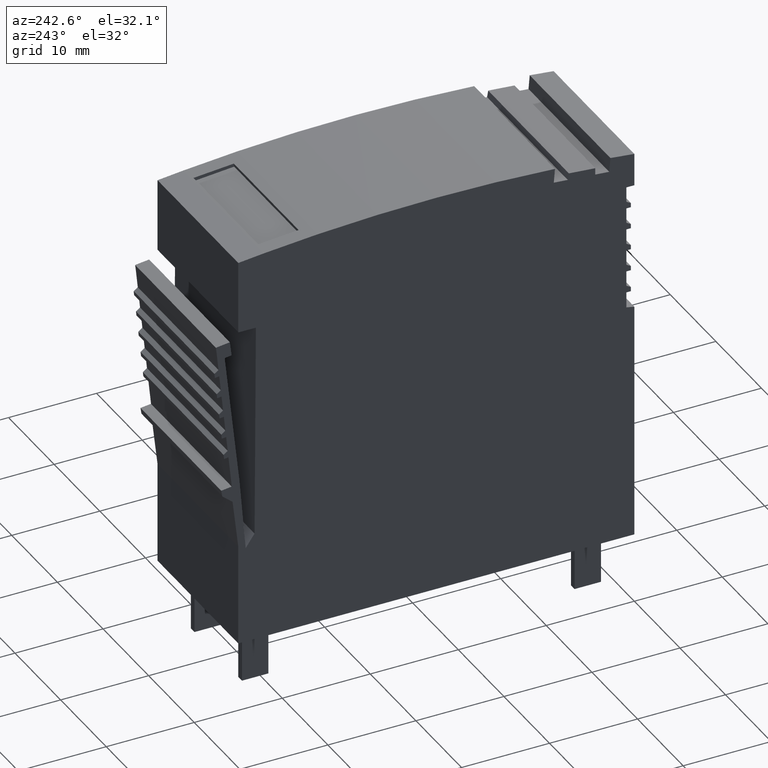
[diagram: clean part render]
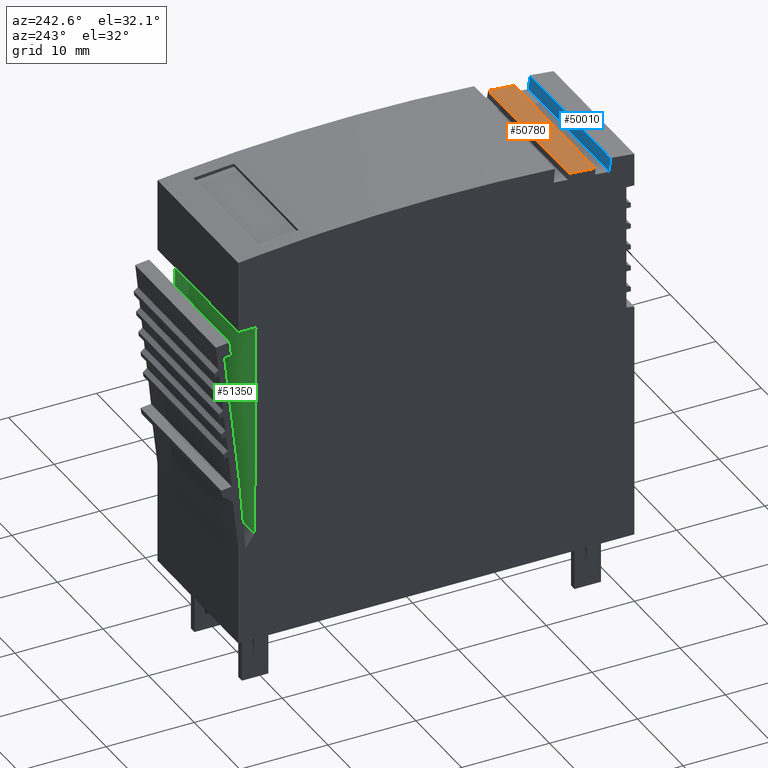
[diagram: same view with three faces highlighted in distinct colors, each labeled with its STEP entity id]
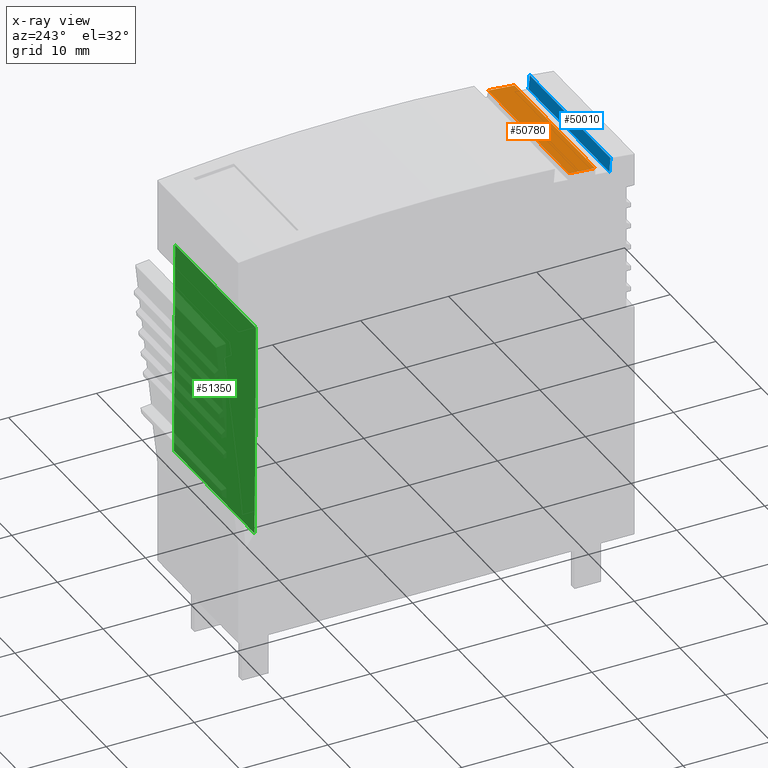
[diagram: x-ray of the same camera — body ghosted, the three highlighted faces saturated]
A machine part, auxiliary view with three faces highlighted in distinct colors.
The next image is the same camera in x-ray (body ghosted, the three faces saturated) — at least one of them is partly hidden behind the body in this view.
Their STEP definitions:

[orange] entity #50780 — the highlighted planar face has unit normal (0, 0.0832, -0.9965).
#4330=CARTESIAN_POINT('',(159.244378852798,100.489562641575,
-2.14452701548681));
#4340=VERTEX_POINT('',#4330);
#4370=CARTESIAN_POINT('',(111.23636600137,104.496821982194,
-2.14452701302401));
#4380=DIRECTION('',(0.996534425424037,-0.0831813617632293,
-5.11219750405834E-11));
#4390=VECTOR('',#4380,1.);
#4400=LINE('',#4370,#4390);
#4410=CARTESIAN_POINT('',(162.23398212907,100.240018556286,
-2.14452701564017));
#4420=VERTEX_POINT('',#4410);
#4430=EDGE_CURVE('',#4340,#4420,#4400,.T.);
#10560=CARTESIAN_POINT('',(162.23398212907,100.240018557842,
-19.8445270161857));
#10570=VERTEX_POINT('',#10560);
#10600=CARTESIAN_POINT('',(111.236365734798,104.496822006001,
-19.8445270158115));
#10610=DIRECTION('',(0.996534425424037,-0.0831813617632293,
-7.31348348397611E-12));
#10620=VECTOR('',#10610,1.);
#10630=LINE('',#10600,#10620);
#10640=CARTESIAN_POINT('',(159.244378852798,100.489562643131,
-19.8445270161638));
#10650=VERTEX_POINT('',#10640);
#10660=EDGE_CURVE('',#10650,#10570,#10630,.T.);
#50450=CARTESIAN_POINT('',(159.244378852798,100.489562642529,
-12.9945270151236));
#50460=DIRECTION('',(3.7666382607192E-27,-8.79221417989464E-11,1.));
#50470=VECTOR('',#50460,1.);
#50480=LINE('',#50450,#50470);
#50490=EDGE_CURVE('',#10650,#4340,#50480,.T.);
#50620=CARTESIAN_POINT('',(162.23398212907,100.240018557842,
-19.8445270161857));
#50630=DIRECTION('',(-0.0831813617632293,-0.996534425424037,
-8.76174410596637E-11));
#50640=DIRECTION('',(0.996534425424037,-0.0831813617632293,
-7.31348348397611E-12));
#50650=AXIS2_PLACEMENT_3D('',#50620,#50630,#50640);
#50660=PLANE('',#50650);
#50670=ORIENTED_EDGE('',*,*,#10660,.F.);
#50680=CARTESIAN_POINT('',(162.23398212907,100.240018557239,
-12.9945270151456));
#50690=DIRECTION('',(3.7666382607192E-27,-8.79221417989464E-11,1.));
#50700=VECTOR('',#50690,1.);
#50710=LINE('',#50680,#50700);
#50720=EDGE_CURVE('',#10570,#4420,#50710,.T.);
#50730=ORIENTED_EDGE('',*,*,#50720,.F.);
#50740=ORIENTED_EDGE('',*,*,#4430,.T.);
#50750=ORIENTED_EDGE('',*,*,#50490,.T.);
#50760=EDGE_LOOP('',(#50750,#50740,#50730,#50670));
#50770=FACE_OUTER_BOUND('',#50760,.T.);
#50780=ADVANCED_FACE('',(#50770),#50660,.F.);

[blue] entity #50010 — the highlighted planar face has unit normal (-0, -0.9965, -0.0832).
#4530=CARTESIAN_POINT('',(163.828334855803,99.3543287232199,
-2.14452701578813));
#4540=VERTEX_POINT('',#4530);
#4570=CARTESIAN_POINT('',(158.62025085402,36.9601229990142,
-2.14452702199048));
#4580=DIRECTION('',(-0.0831813617632674,-0.996534425424034,
-8.39607203001373E-11));
#4590=VECTOR('',#4580,1.);
#4600=LINE('',#4570,#4590);
#4610=CARTESIAN_POINT('',(163.961807008459,100.953359950138,
-2.14452701565341));
#4620=VERTEX_POINT('',#4610);
#4630=EDGE_CURVE('',#4620,#4540,#4600,.T.);
#8480=CARTESIAN_POINT('',(163.961807007981,100.953359951092,
-12.9945270150828));
#8490=DIRECTION('',(4.39608349722675E-11,-8.79221417989464E-11,1.));
#8500=VECTOR('',#8490,1.);
#8510=LINE('',#8480,#8500);
#8520=CARTESIAN_POINT('',(163.96180700768,100.953359951694,
-19.844527016123));
#8530=VERTEX_POINT('',#8520);
#8540=EDGE_CURVE('',#8530,#4620,#8510,.T.);
#10360=CARTESIAN_POINT('',(158.620250854798,36.9601230005704,
-19.8445270217494));
#10370=DIRECTION('',(-0.0831813617632674,-0.996534425424034,
-8.76174410596635E-11));
#10380=VECTOR('',#10370,1.);
#10390=LINE('',#10360,#10380);
#10400=CARTESIAN_POINT('',(163.828334856587,99.3543287248423,
-19.8445270162636));
#10410=VERTEX_POINT('',#10400);
#10420=EDGE_CURVE('',#8530,#10410,#10390,.T.);
#49850=CARTESIAN_POINT('',(163.869925536631,99.8525959358795,
-0.794527015177283));
#49860=DIRECTION('',(0.996534425424033,-0.0831813617632673,
3.64951239765394E-11));
#49870=DIRECTION('',(-0.0831813617632674,-0.996534425424034,
-9.12741733636858E-11));
#49880=AXIS2_PLACEMENT_3D('',#49850,#49860,#49870);
#49890=PLANE('',#49880);
#49900=ORIENTED_EDGE('',*,*,#10420,.T.);
#49910=ORIENTED_EDGE('',*,*,#8540,.F.);
#49920=ORIENTED_EDGE('',*,*,#4630,.F.);
#49930=CARTESIAN_POINT('',(163.828334856285,99.35432872424,
-12.9945270152234));
#49940=DIRECTION('',(-4.39609574369474E-11,-8.79221417989464E-11,1.));
#49950=VECTOR('',#49940,1.);
#49960=LINE('',#49930,#49950);
#49970=EDGE_CURVE('',#10410,#4540,#49960,.T.);
#49980=ORIENTED_EDGE('',*,*,#49970,.T.);
#49990=EDGE_LOOP('',(#49980,#49920,#49910,#49900));
#50000=FACE_OUTER_BOUND('',#49990,.T.);
#50010=ADVANCED_FACE('',(#50000),#49890,.F.);

[green] entity #51350 — the highlighted planar face has unit normal (-0, -1, -0.0061).
#3370=CARTESIAN_POINT('',(123.526540085116,67.9164956994896,
-2.14452701678051));
#3380=VERTEX_POINT('',#3370);
#3410=CARTESIAN_POINT('',(123.337436013273,36.9601229990142,
-2.14452701949395));
#3420=DIRECTION('',(-0.00610861438498844,-0.999981342241092,
-8.76519614042512E-11));
#3430=VECTOR('',#3420,1.);
#3440=LINE('',#3410,#3430);
#3450=CARTESIAN_POINT('',(123.676006706755,92.3842102263611,
-2.14452701463583));
#3460=VERTEX_POINT('',#3450);
#3470=EDGE_CURVE('',#3460,#3380,#3440,.T.);
#11480=CARTESIAN_POINT('',(123.676006706755,92.3842102279174,
-19.8445270168764));
#11490=VERTEX_POINT('',#11480);
#11520=CARTESIAN_POINT('',(123.337436013273,36.9601230005704,
-19.8445270191645));
#11530=DIRECTION('',(0.00610861438498844,0.999981342241092,
8.76519614042512E-11));
#11540=VECTOR('',#11530,1.);
#11550=LINE('',#11520,#11540);
#11560=CARTESIAN_POINT('',(123.526540085116,67.9164957010458,
-19.8445270190277));
#11570=VERTEX_POINT('',#11560);
#11580=EDGE_CURVE('',#11570,#11490,#11550,.T.);
#45990=CARTESIAN_POINT('',(123.676006706755,92.3842102273151,
-12.9945270158363));
#46000=DIRECTION('',(-3.7666382607192E-27,8.79221417989464E-11,-1.));
#46010=VECTOR('',#46000,1.);
#46020=LINE('',#45990,#46010);
#46030=EDGE_CURVE('',#3460,#11490,#46020,.T.);
#51190=CARTESIAN_POINT('',(123.528439472669,68.2274258064226,
-18.8445270181341));
#51200=DIRECTION('',(0.999981342241092,-0.00610861438498844,
-5.37082460152041E-13));
#51210=DIRECTION('',(-0.00610861438498844,-0.999981342241092,
-8.7920501368822E-11));
#51220=AXIS2_PLACEMENT_3D('',#51190,#51200,#51210);
#51230=PLANE('',#51220);
#51240=CARTESIAN_POINT('',(123.526540085116,67.9164957004435,
-12.9945270179875));
#51250=DIRECTION('',(-3.7666382607192E-27,8.79221417989464E-11,-1.));
#51260=VECTOR('',#51250,1.);
#51270=LINE('',#51240,#51260);
#51280=EDGE_CURVE('',#3380,#11570,#51270,.T.);
#51290=ORIENTED_EDGE('',*,*,#51280,.F.);
#51300=ORIENTED_EDGE('',*,*,#11580,.F.);
#51310=ORIENTED_EDGE('',*,*,#46030,.T.);
#51320=ORIENTED_EDGE('',*,*,#3470,.F.);
#51330=EDGE_LOOP('',(#51320,#51310,#51300,#51290));
#51340=FACE_OUTER_BOUND('',#51330,.T.);
#51350=ADVANCED_FACE('',(#51340),#51230,.F.);